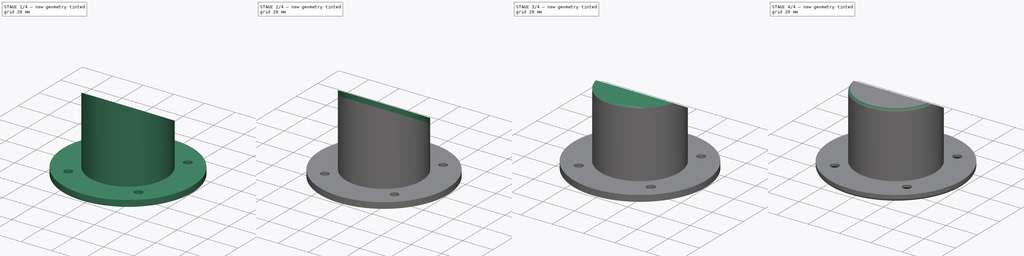
[diagram: build sequence overview — one tinted view per stage of 4, left to right]
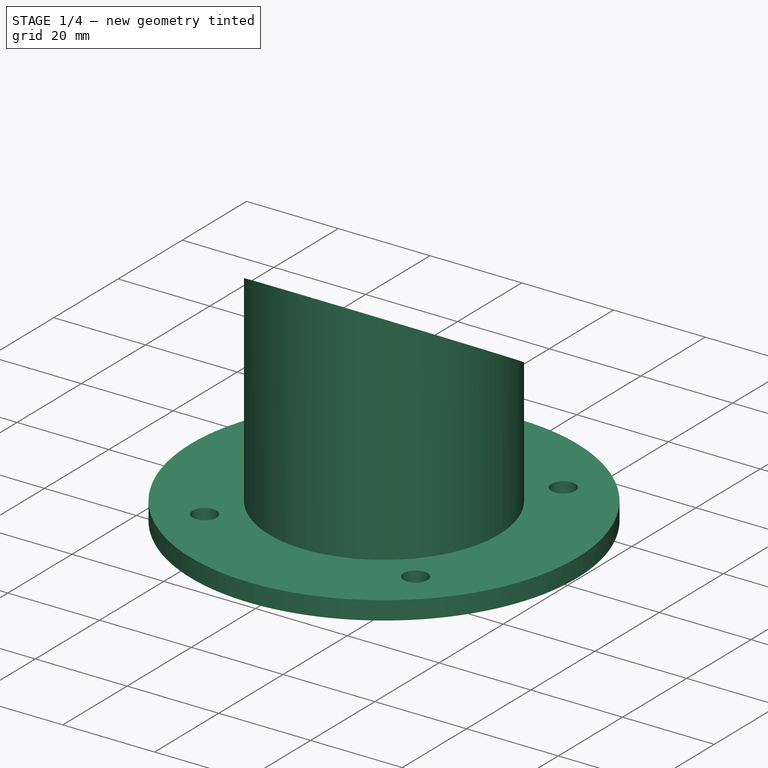
[diagram: stage 1 of 4 — iso view after this stage's code; geometry added in this stage tinted green]
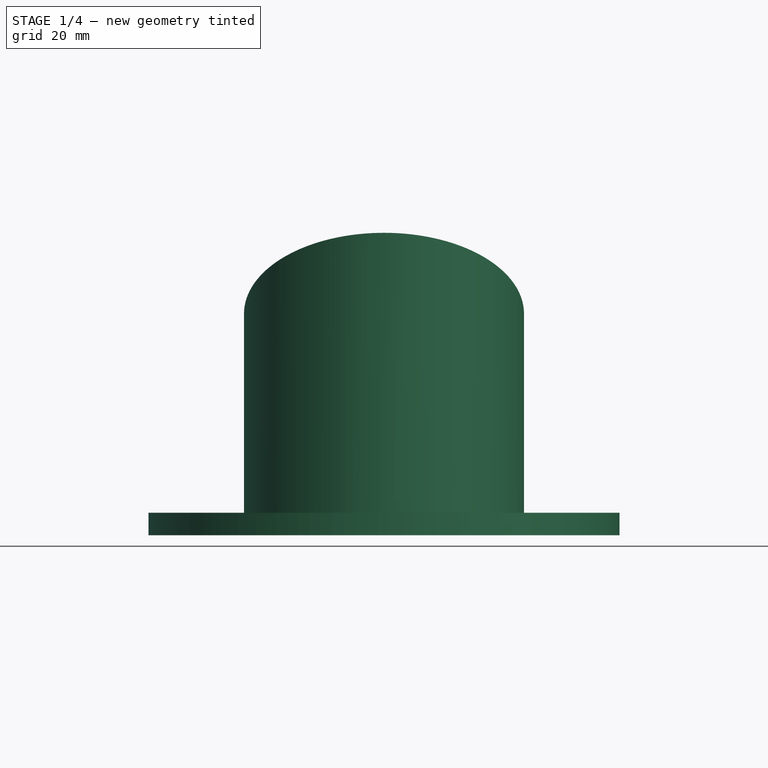
[diagram: stage 1 of 4 — front view after this stage's code; geometry added in this stage tinted green]
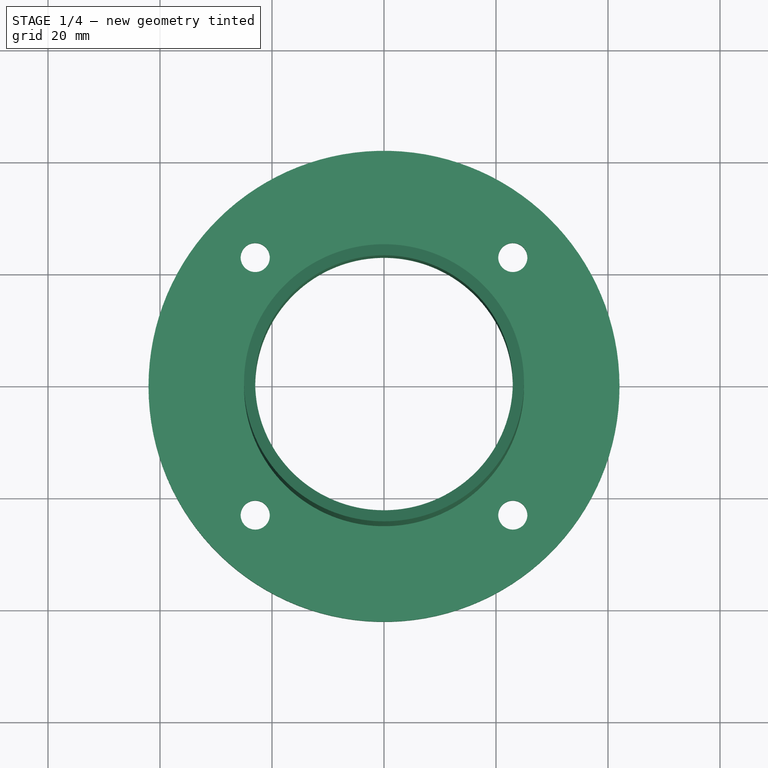
[diagram: stage 1 of 4 — top view after this stage's code; geometry added in this stage tinted green]
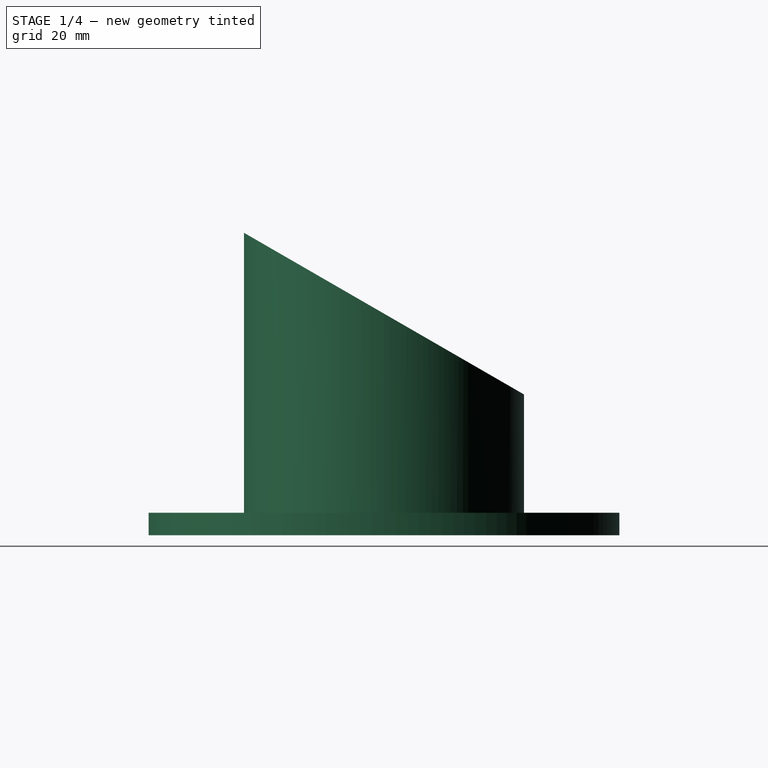
[diagram: stage 1 of 4 — right view after this stage's code; geometry added in this stage tinted green]
FCSTD DOCUMENT  (FreeCAD 0.18R4 (GitTag))
Label: speaker_wire_terminal
License: All rights reserved
LicenseURL: http://en.wikipedia.org/wiki/All_rights_reserved
objects: Sketcher::SketchObject×9, PartDesign::Pocket×5, PartDesign::Pad×4, PartDesign::Chamfer×2, PartDesign::Fillet×1, PartDesign::Body×1
note: 31 computed .brp shape members not serialized (recipe doc carries the construction recipe); baked Part::Feature solids carry a one-line shape summary decoded from their .brp

FEATURE [Sketcher::SketchObject] Sketch  label="attachmentRing"
  MapMode = 5
  Support = -> [XY_Plane]
  sketch-geometry (12):
    g0: Circle CenterX=0 CenterY=0 CenterZ=0 NormalX=0 NormalY=0 NormalZ=1 AngleXU=0 Radius=23
    g1: Circle CenterX=0 CenterY=0 CenterZ=0 NormalX=0 NormalY=0 NormalZ=1 AngleXU=0 Radius=42.0538
    g2: Circle CenterX=-23 CenterY=23 CenterZ=0 NormalX=0 NormalY=0 NormalZ=1 AngleXU=0 Radius=2.6
    g3: Circle CenterX=23 CenterY=23 CenterZ=0 NormalX=0 NormalY=0 NormalZ=1 AngleXU=0 Radius=2.6
    g4: Circle CenterX=23 CenterY=-23 CenterZ=0 NormalX=0 NormalY=0 NormalZ=1 AngleXU=0 Radius=2.6
    g5: Circle CenterX=-23 CenterY=-23 CenterZ=0 NormalX=0 NormalY=0 NormalZ=1 AngleXU=0 Radius=2.6
    g6: LineSegment [constr] StartX=-23 StartY=23 StartZ=0 EndX=23 EndY=23 EndZ=0
    g7: LineSegment [constr] StartX=23 StartY=23 StartZ=0 EndX=23 EndY=-23 EndZ=0
    g8: LineSegment [constr] StartX=23 StartY=-23 StartZ=0 EndX=-23 EndY=-23 EndZ=0
    g9: LineSegment [constr] StartX=-23 StartY=-23 StartZ=0 EndX=-23 EndY=23 EndZ=0
    g10: LineSegment [constr] StartX=16.2635 StartY=16.2635 StartZ=0 EndX=23 EndY=23 EndZ=0
    g11: LineSegment [constr] StartX=23 StartY=23 StartZ=0 EndX=29.7365 EndY=29.7365 EndZ=0
  constraints (30):
    c: Coincident(g0,g1)
    c: Coincident(g0,g-1)
    c: Radius(g0) = 23
    c: Coincident(g6,g7)
    c: Coincident(g7,g8)
    c: Coincident(g8,g9)
    c: Coincident(g9,g6)
    c: Horizontal(g6)
    c: Horizontal(g8)
    c: Vertical(g7)
    c: Vertical(g9)
    c: Coincident(g6,g3)
    c: Coincident(g6,g2)
    c: Coincident(g8,g5)
    c: Coincident(g7,g4)
    c: Equal(g8,g9)
    c: Tangent(g8,g0)
    c: Tangent(g9,g0)
    c: Tangent(g7,g0)
    c: Equal(g3,g4)
    c: Equal(g4,g5)
    c: Equal(g5,g2)
    c: Radius(g3) = 2.6
    c: PointOnObject(g11,g1)
    c: Coincident(g11,g3)
    c: Coincident(g10,g3)
    c: PointOnObject(g10,g0)
    c: Perpendicular(g0,g10)
    c: Perpendicular(g1,g11)
    c: Equal(g11,g10)
FEATURE [PartDesign::Pad] Pad  label="attachmentRing_pad"
  Length = 4
  Length2 = 100
  Profile = -> Sketch
  Type = 0
FEATURE [Sketcher::SketchObject] Sketch001  label="barrel"
  ExternalGeometry = -> [Pad]
  MapMode = 5
  Placement = pos=(0,0,4) rot=(0,0,1;0rad)
  Support = -> [Pad]
  sketch-geometry (2):
    g0: Circle CenterX=0 CenterY=0 CenterZ=0 NormalX=0 NormalY=0 NormalZ=1 AngleXU=0 Radius=23
    g1: Circle CenterX=0 CenterY=0 CenterZ=0 NormalX=0 NormalY=0 NormalZ=1 AngleXU=0 Radius=25
  constraints (4):
    c: Coincident(g0,g-1)
    c: Equal(g0,g-3)
    c: Coincident(g1,g0)
    c: Radius(g1) = 25
FEATURE [PartDesign::Pad] Pad001  label="barrelPad"
  BaseFeature = -> Pad
  Length = 50
  Length2 = 100
  Profile = -> Sketch001
  Type = 0
FEATURE [Sketcher::SketchObject] Sketch002
  ExternalGeometry = -> [Pad001]
  MapMode = 5
  Placement = pos=(0,0,0) rot=(0.57735,0.57735,0.57735;2.0944rad)
  Support = -> [YZ_Plane]
  sketch-geometry (5):
    g0: LineSegment StartX=-25 StartY=54 StartZ=0 EndX=25 EndY=25.1325 EndZ=0
    g1: LineSegment [constr] StartX=4.7e-15 StartY=4 StartZ=0 EndX=-25 EndY=4 EndZ=0
    g2: LineSegment [constr] StartX=4.7e-15 StartY=4 StartZ=0 EndX=25 EndY=4 EndZ=0
    g3: LineSegment StartX=25 StartY=25.1325 StartZ=0 EndX=25 EndY=54 EndZ=0
    g4: LineSegment StartX=25 StartY=54 StartZ=0 EndX=-25 EndY=54 EndZ=0
  constraints (15):
    c: Angle(g-3,g0) = 1.0472
    c: Coincident(g2,g-3)
    c: Coincident(g2,g1)
    c: Horizontal(g2)
    c: Horizontal(g1)
    c: Equal(g1,g2)
    c: Vertical(g2,g0)
    c: Vertical(g1,g0)
    c: DistanceX(g2,g2) = 25
    c: Horizontal(g0,g-3)
    c: Coincident(g4,g3)
    c: Coincident(g3,g0)
    c: Coincident(g4,g0)
    c: Horizontal(g4)
    c: Vertical(g3)
FEATURE [PartDesign::Pocket] Pocket
  BaseFeature = -> Pad001
  Length = 25
  Length2 = 25
  Profile = -> Sketch002
  Type = 4
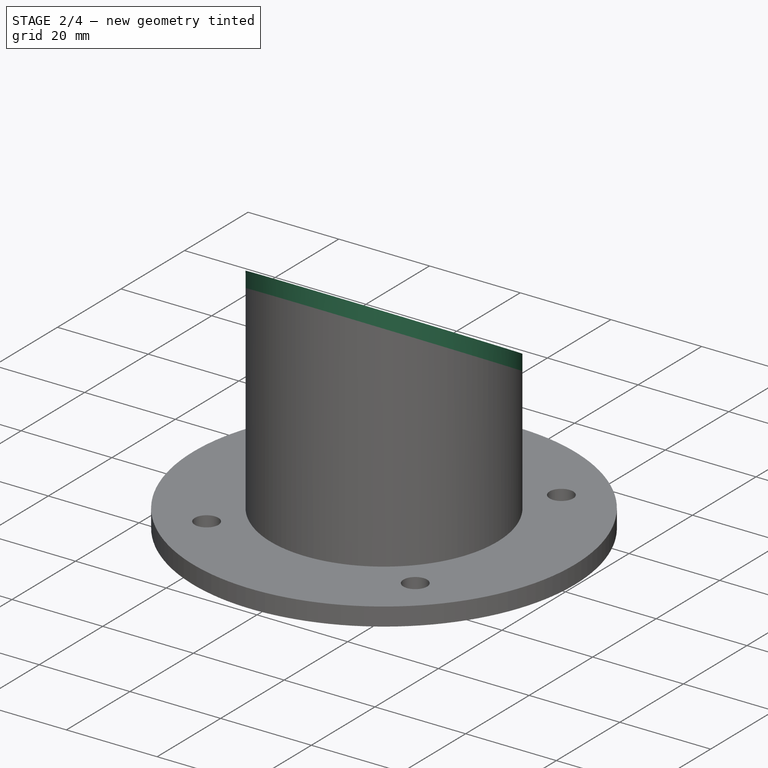
[diagram: stage 2 of 4 — iso view after this stage's code; geometry added in this stage tinted green]
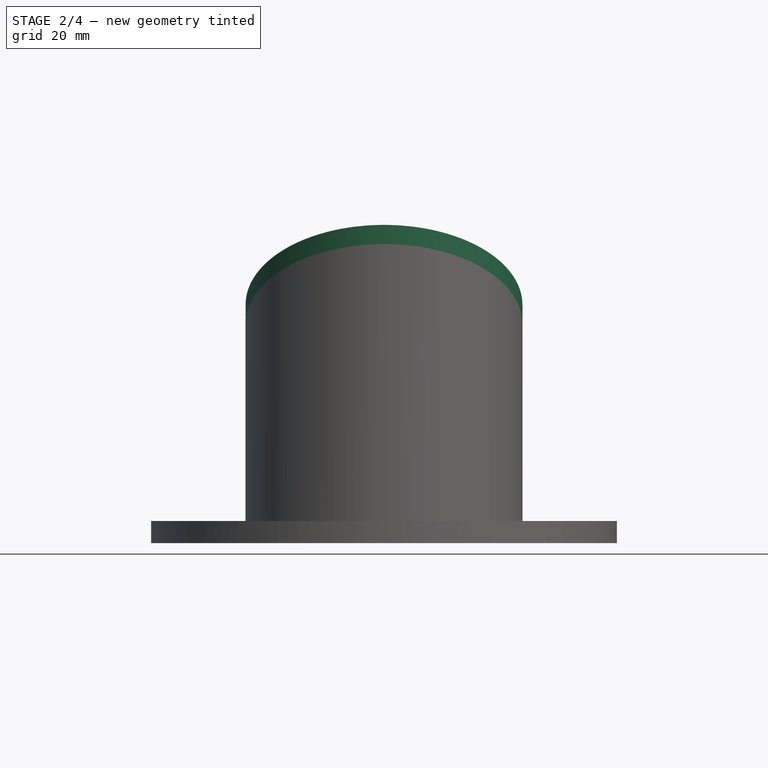
[diagram: stage 2 of 4 — front view after this stage's code; geometry added in this stage tinted green]
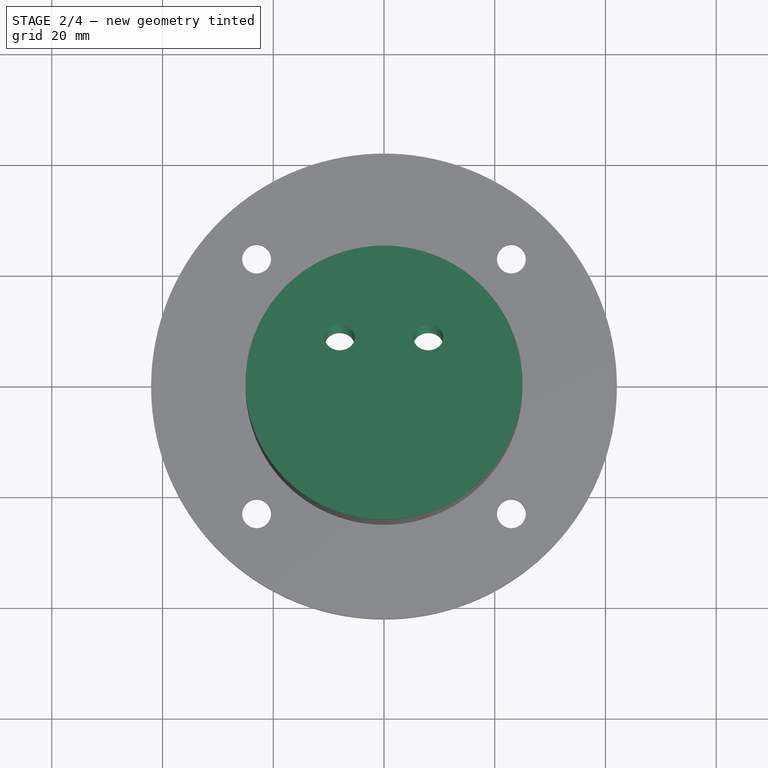
[diagram: stage 2 of 4 — top view after this stage's code; geometry added in this stage tinted green]
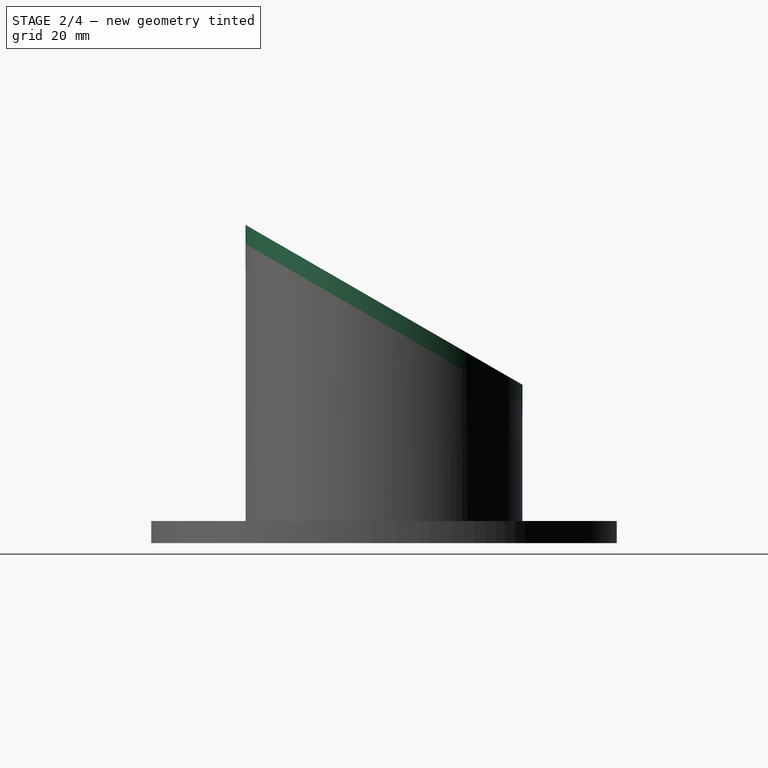
[diagram: stage 2 of 4 — right view after this stage's code; geometry added in this stage tinted green]
FEATURE [Sketcher::SketchObject] Sketch003  label="bottomPlane"
  ExternalGeometry = -> [Pocket]
  MapMode = 5
  Placement = pos=(-4.4e-15,17.1327,29.6747) rot=(-1,0,0;0.523599rad)
  Support = -> [Pocket]
  sketch-geometry (1):
    g0: Circle CenterX=4.4e-15 CenterY=-19.7831 CenterZ=0 NormalX=0 NormalY=0 NormalZ=1 AngleXU=0 Radius=31
  constraints (2):
    c: Coincident(g-3,g0)
    c: Radius(g0) = 31
FEATURE [PartDesign::Pad] Pad002  label="bottomPlane_pad"
  BaseFeature = -> Pocket
  Length = 3
  Length2 = 100
  Profile = -> Sketch003
  Type = 0
FEATURE [Sketcher::SketchObject] Sketch004
  ExternalGeometry = -> [Pad002]
  MapMode = 5
  Placement = pos=(0,0,4) rot=(0,0,1;0rad)
  Support = -> [Pad002]
  sketch-geometry (2):
    g0: Circle CenterX=0 CenterY=0 CenterZ=0 NormalX=0 NormalY=0 NormalZ=1 AngleXU=0 Radius=25
    g1: Circle CenterX=0 CenterY=0 CenterZ=0 NormalX=0 NormalY=0 NormalZ=1 AngleXU=0 Radius=42.0538
  constraints (4):
    c: Coincident(g0,g1)
    c: Coincident(g0,g-3)
    c: Equal(g0,g-3)
    c: Equal(g1,g-4)
FEATURE [PartDesign::Pocket] Pocket001  label="bottomPlaneCleanout_pocket"
  BaseFeature = -> Pad002
  Length = 55
  Length2 = 100
  Profile = -> Sketch004
  Reversed = true
  Type = 0
FEATURE [Sketcher::SketchObject] Sketch005  label="postHoles"
  MapMode = 5
  Placement = pos=(-4.1e-15,17.1327,29.6747) rot=(1,0,0;2.61799rad)
  Support = -> [Pocket001]
  sketch-geometry (4):
    g0: Circle CenterX=-8 CenterY=12 CenterZ=0 NormalX=0 NormalY=0 NormalZ=1 AngleXU=0 Radius=2.7
    g1: Circle CenterX=8 CenterY=12 CenterZ=0 NormalX=0 NormalY=0 NormalZ=1 AngleXU=0 Radius=2.7
    g2: LineSegment [constr] StartX=-8 StartY=0 StartZ=0 EndX=0 EndY=0 EndZ=0
    g3: LineSegment [constr] StartX=0 StartY=0 StartZ=0 EndX=8 EndY=0 EndZ=0
  constraints (12):
    c: Horizontal(g1,g0)
    c: Coincident(g3,g2)
    c: Coincident(g3,g-1)
    c: Horizontal(g3)
    c: Horizontal(g2)
    c: Equal(g2,g3)
    c: Vertical(g1,g3)
    c: Vertical(g2,g0)
    c: Equal(g1,g0)
    c: Radius(g1) = 2.7
    c: DistanceY(g2,g0) = 12
    c: DistanceX(g3,g3) = 8
FEATURE [PartDesign::Pocket] Pocket002  label="postHoles_pocket"
  BaseFeature = -> Pocket001
  Length = 5
  Length2 = 100
  Profile = -> Sketch005
  Type = 0
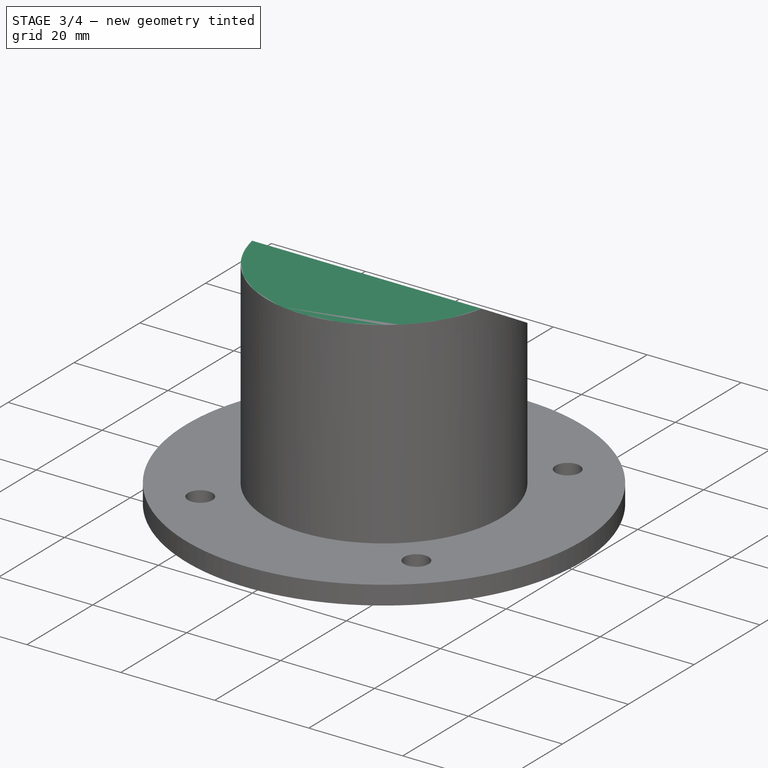
[diagram: stage 3 of 4 — iso view after this stage's code; geometry added in this stage tinted green]
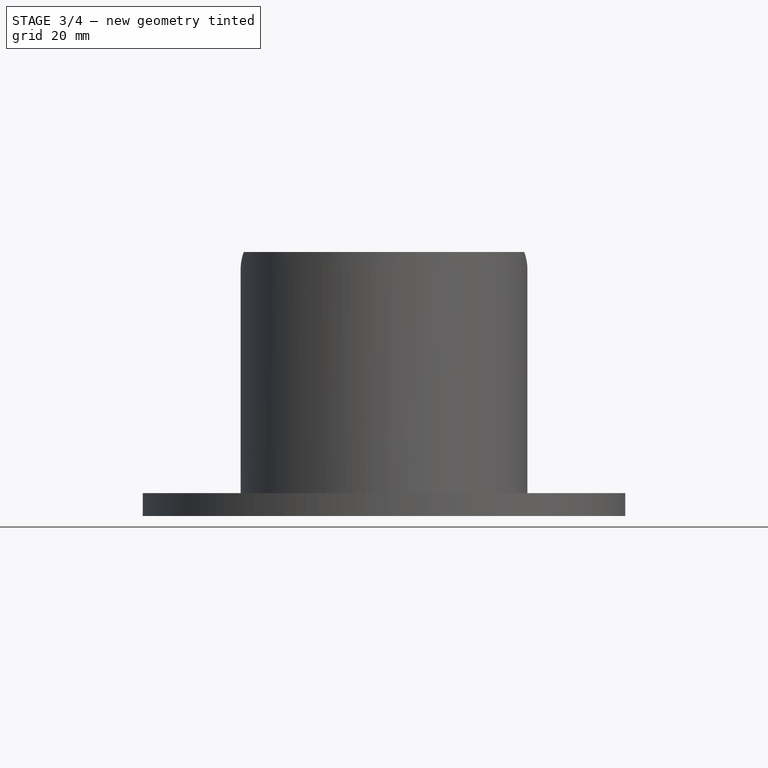
[diagram: stage 3 of 4 — front view after this stage's code; geometry added in this stage tinted green]
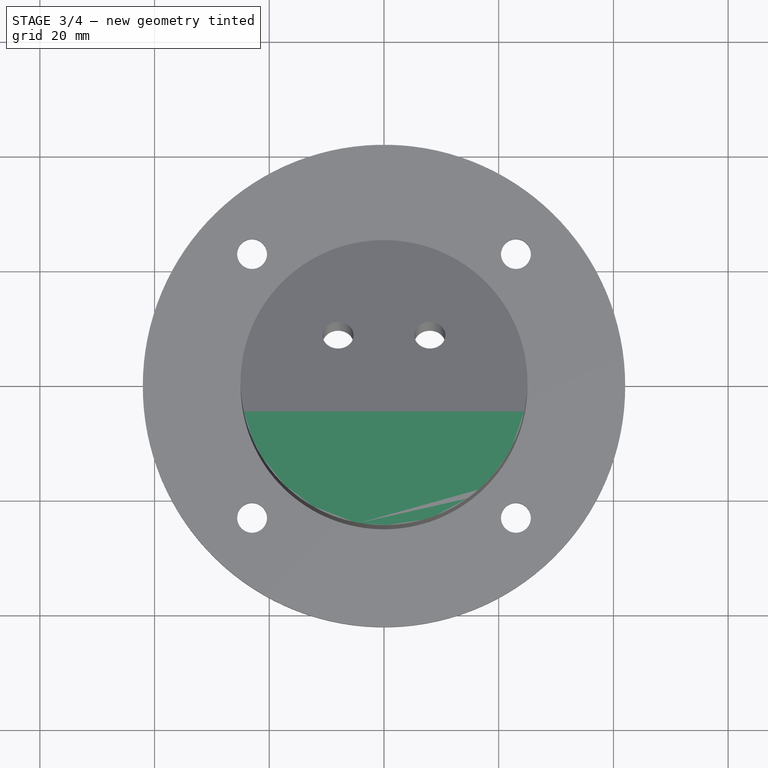
[diagram: stage 3 of 4 — top view after this stage's code; geometry added in this stage tinted green]
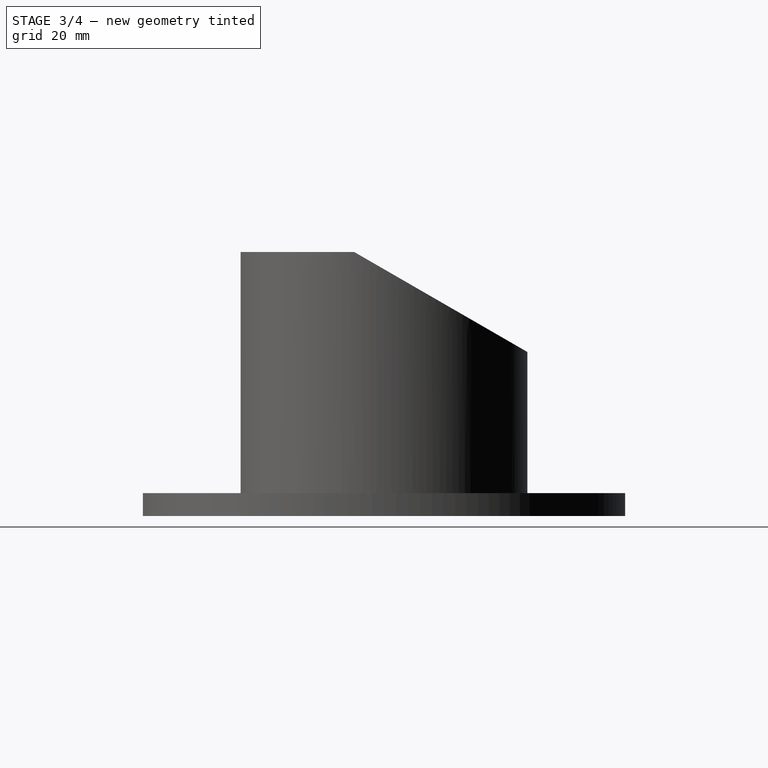
[diagram: stage 3 of 4 — right view after this stage's code; geometry added in this stage tinted green]
FEATURE [Sketcher::SketchObject] Sketch006  label="bottomPlaneTrim"
  ExternalGeometry = -> [Pocket002]
  MapMode = 5
  Placement = pos=(0,0,0) rot=(0.57735,0.57735,0.57735;2.0944rad)
  Support = -> [YZ_Plane]
  sketch-geometry (4):
    g0: LineSegment StartX=-5.6e-15 StartY=43.0303 StartZ=0 EndX=-30 EndY=43.0303 EndZ=0
    g1: LineSegment StartX=-30 StartY=63.0303 StartZ=0 EndX=-30 EndY=43.0303 EndZ=0
    g2: LineSegment StartX=-5.6e-15 StartY=43.0303 StartZ=0 EndX=-5.6e-15 EndY=63.0303 EndZ=0
    g3: LineSegment StartX=-5.6e-15 StartY=63.0303 StartZ=0 EndX=-30 EndY=63.0303 EndZ=0
  constraints (11):
    c: Coincident(g1,g0)
    c: Horizontal(g0)
    c: Coincident(g0,g-3)
    c: Vertical(g1)
    c: Coincident(g3,g1)
    c: Coincident(g2,g3)
    c: Coincident(g2,g0)
    c: Horizontal(g3)
    c: Vertical(g2)
    c: DistanceX(g0,g0) = 30
    c: DistanceY(g2,g2) = 20
FEATURE [PartDesign::Pocket] Pocket003  label="bottomPlaneTrim_pocket"
  BaseFeature = -> Pocket002
  Length = 51
  Length2 = 100
  Midplane = true
  Profile = -> Sketch006
  Type = 0
FEATURE [Sketcher::SketchObject] Sketch007  label="bottomPlaneTimFill"
  ExternalGeometry = -> [Pocket003]
  MapMode = 5
  Placement = pos=(-1.19e-14,9.6e-15,43.0303) rot=(0,0,1;0rad)
  Support = -> [Pocket003]
  sketch-geometry (2):
    g0: ArcOfCircle CenterX=1.304e-13 CenterY=0 CenterZ=0 NormalX=0 NormalY=0 NormalZ=1 AngleXU=0 Radius=25 StartAngle=3.14159 EndAngle=6.28319
    g1: LineSegment StartX=-25 StartY=3.1e-15 StartZ=0 EndX=25 EndY=-6.1e-15 EndZ=0
  constraints (5):
    c: Coincident(g0,g-6)
    c: Coincident(g0,g-6)
    c: Coincident(g0,g-1)
    c: Coincident(g1,g0)
    c: Coincident(g1,g0)
FEATURE [PartDesign::Pad] Pad003  label="bottomPlaneTrimFill_pad"
  BaseFeature = -> Pocket003
  Length = 3
  Length2 = 100
  Profile = -> Sketch007
  Type = 0
FEATURE [Sketcher::SketchObject] Sketch008  label="fillTrim"
  ExternalGeometry = -> [Pad003]
  MapMode = 5
  Placement = pos=(-4.4e-15,18.6327,32.2728) rot=(-1,0,0;0.523599rad)
  Support = -> [Pad003]
  sketch-geometry (4):
    g0: LineSegment StartX=25 StartY=-21.5152 StartZ=0 EndX=-25 EndY=-21.5152 EndZ=0
    g1: LineSegment StartX=-25 StartY=-21.5152 StartZ=0 EndX=-25 EndY=-31.5152 EndZ=0
    g2: LineSegment StartX=-25 StartY=-31.5152 StartZ=0 EndX=25 EndY=-31.5152 EndZ=0
    g3: LineSegment StartX=25 StartY=-31.5152 StartZ=0 EndX=25 EndY=-21.5152 EndZ=0
  constraints (10):
    c: Coincident(g0,g1)
    c: Coincident(g1,g2)
    c: Coincident(g2,g3)
    c: Coincident(g3,g0)
    c: Horizontal(g2)
    c: Vertical(g1)
    c: Vertical(g3)
    c: Coincident(g-3,g0)
    c: Coincident(g-3,g0)
    c: DistanceY(g1,g1) = 10
FEATURE [PartDesign::Pocket] Pocket004  label="fillTrim_pad"
  BaseFeature = -> Pad003
  Length = 7
  Length2 = 100
  Profile = -> Sketch008
  Reversed = true
  Type = 0
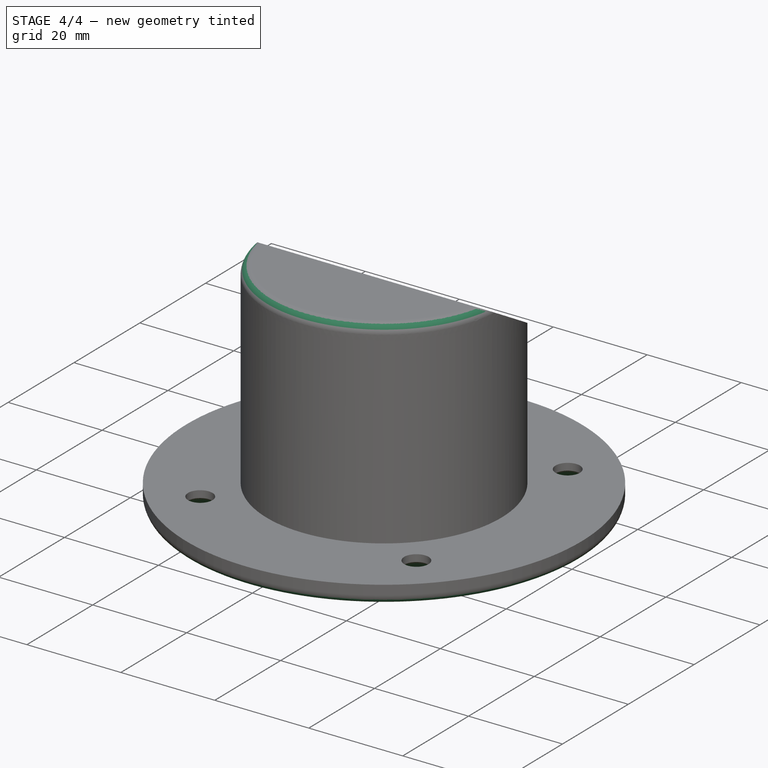
[diagram: stage 4 of 4 — iso view after this stage's code; geometry added in this stage tinted green]
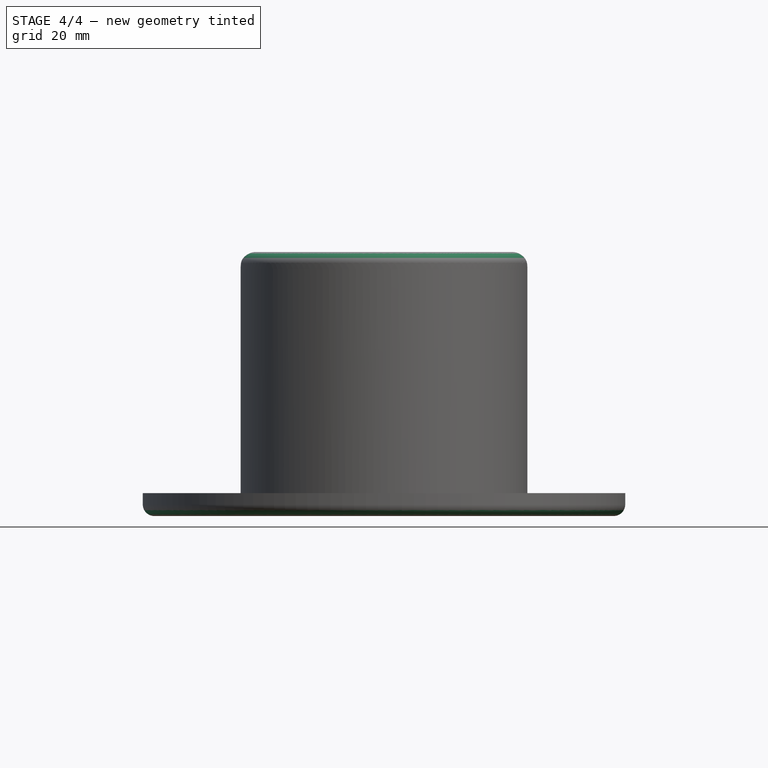
[diagram: stage 4 of 4 — front view after this stage's code; geometry added in this stage tinted green]
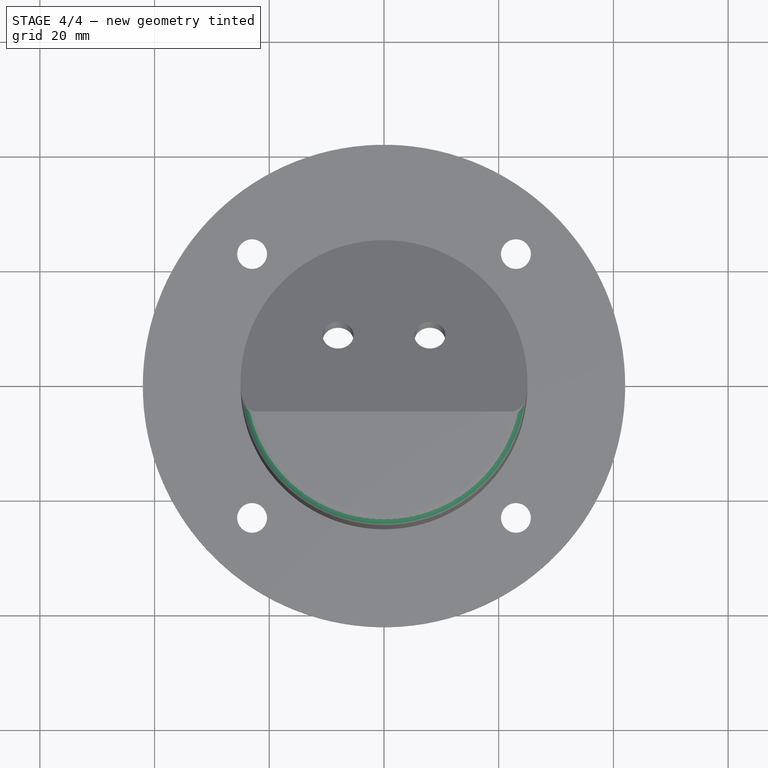
[diagram: stage 4 of 4 — top view after this stage's code; geometry added in this stage tinted green]
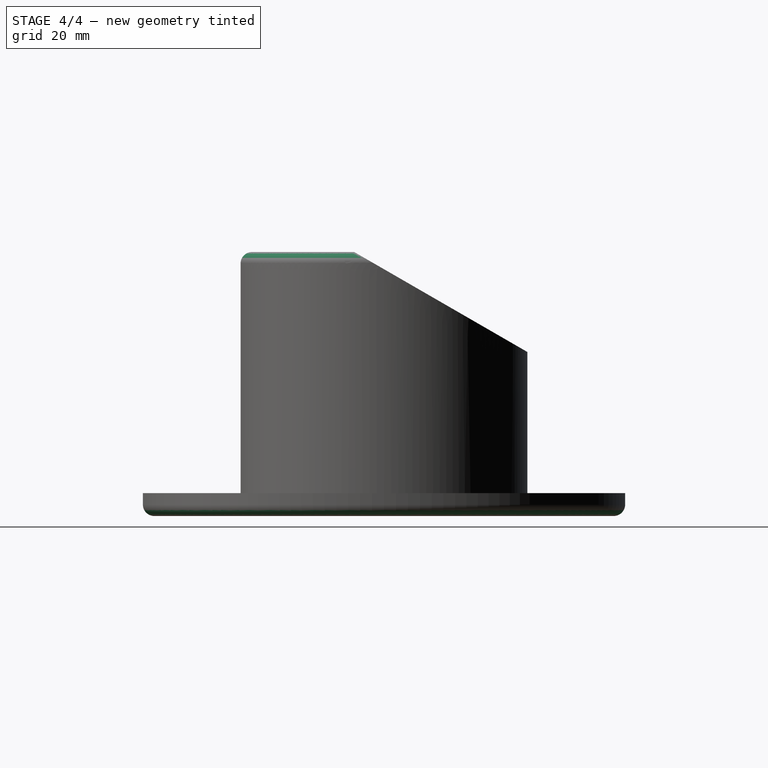
[diagram: stage 4 of 4 — right view after this stage's code; geometry added in this stage tinted green]
FEATURE [PartDesign::Fillet] Fillet  label="bigEdge_fillet"
  Base = -> Pocket004 [Edge34,Edge21,Edge17]
  BaseFeature = -> Pocket004
  Radius = 2
FEATURE [PartDesign::Chamfer] Chamfer  label="terminalPost_camfer"
  Base = -> Fillet [Edge29,Edge27]
  BaseFeature = -> Fillet
  Size = 1
FEATURE [PartDesign::Chamfer] Chamfer001  label="mountHole_camfer"
  Base = -> Chamfer [Edge48,Edge52,Edge54,Edge50]
  BaseFeature = -> Chamfer
  Size = 2.5
FEATURE [PartDesign::Body] Body
  Group = -> [Sketch,Pad,Sketch001,Pad001,Sketch002,Pocket,Sketch003,Pad002,Sketch004,Pocket001,Sketch005,Pocket002,Sketch006,Pocket003,Sketch007,Pad003,Sketch008,Pocket004,Fillet,Chamfer,Chamfer001]
  Origin = -> Origin
  Tip = -> Chamfer001
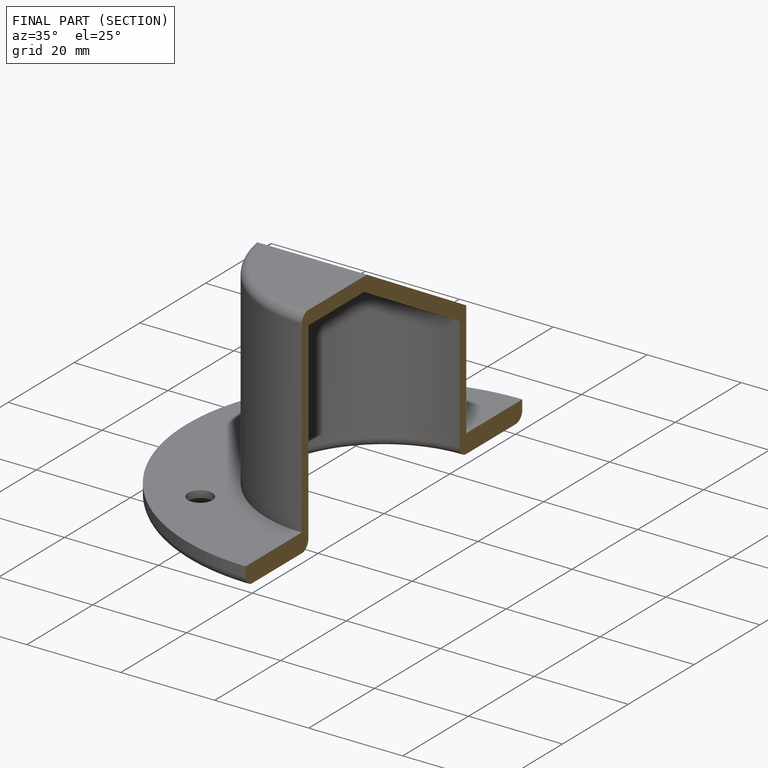
[diagram: finished part — half-section view (interior)]
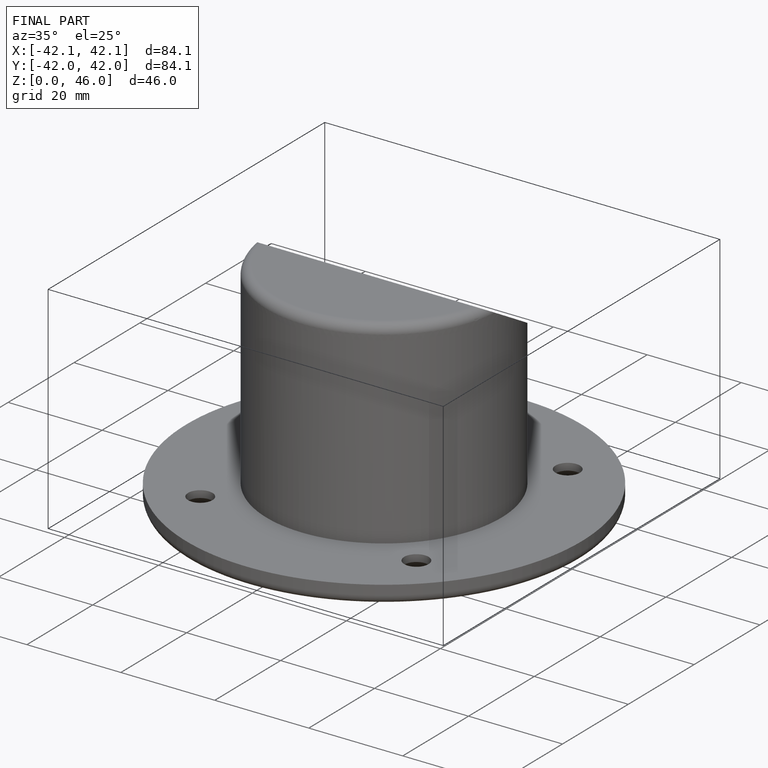
[diagram: finished part — iso view with bounding-box wireframe]
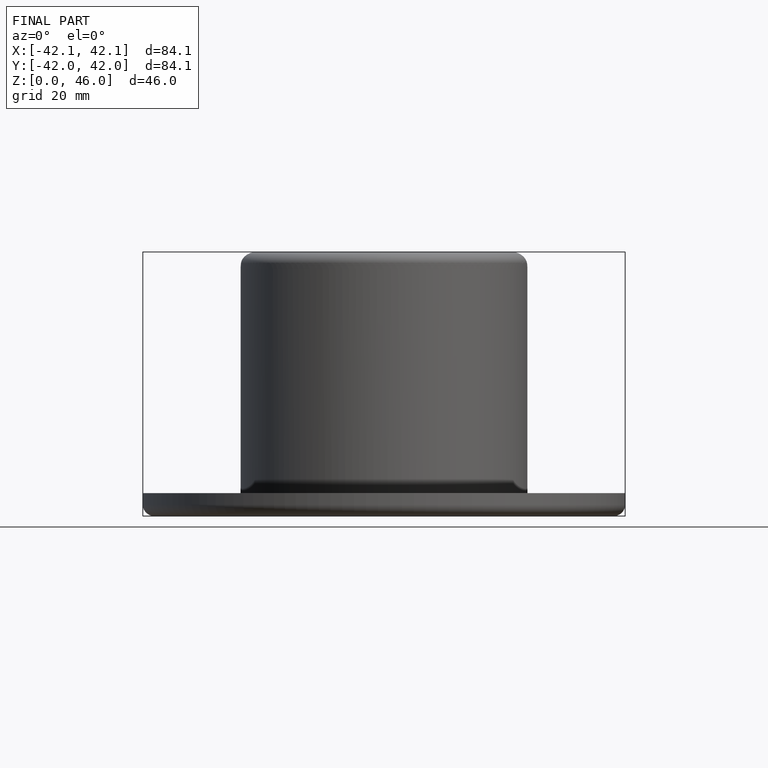
[diagram: finished part — front view with bounding-box wireframe]
